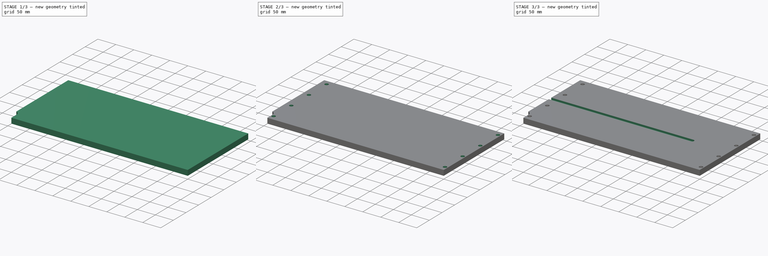
[diagram: build sequence overview — one tinted view per stage of 3, left to right]
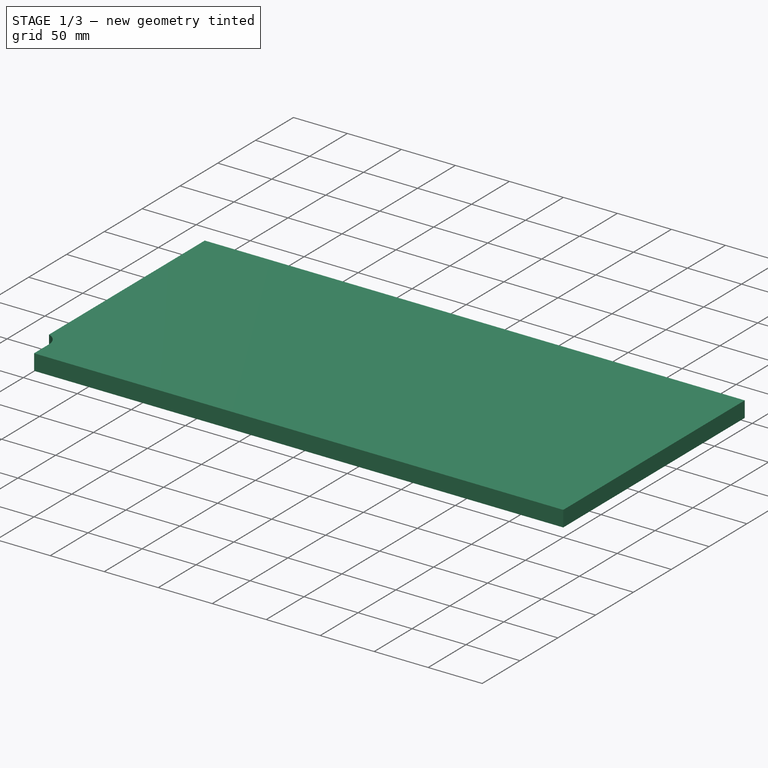
[diagram: stage 1 of 3 — iso view after this stage's code; geometry added in this stage tinted green]
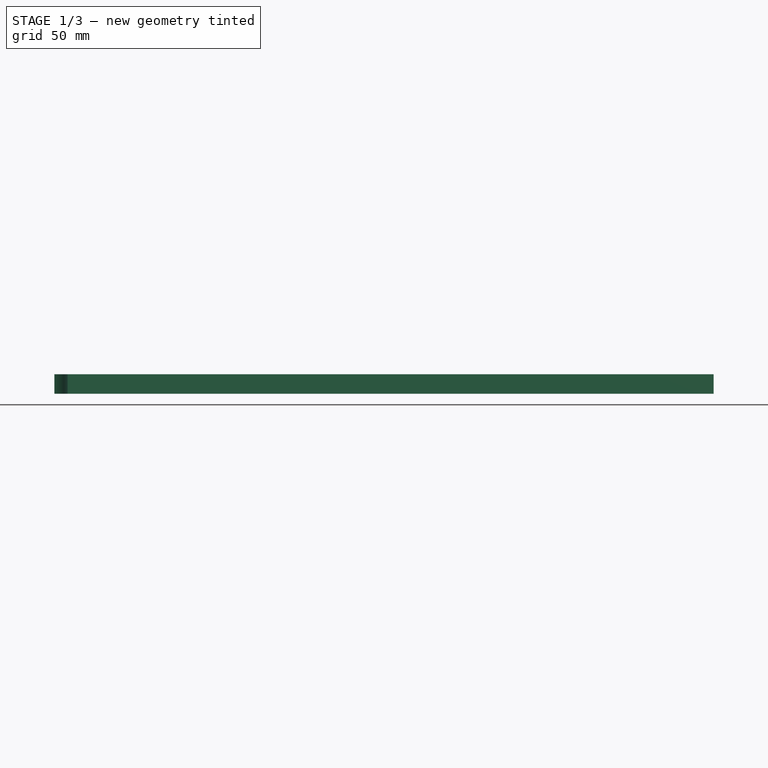
[diagram: stage 1 of 3 — front view after this stage's code; geometry added in this stage tinted green]
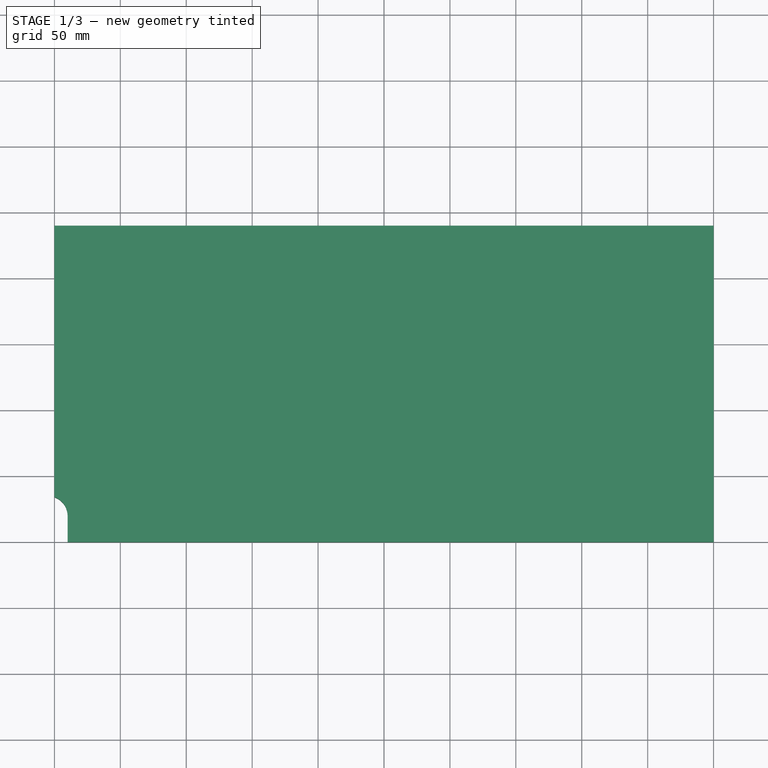
[diagram: stage 1 of 3 — top view after this stage's code; geometry added in this stage tinted green]
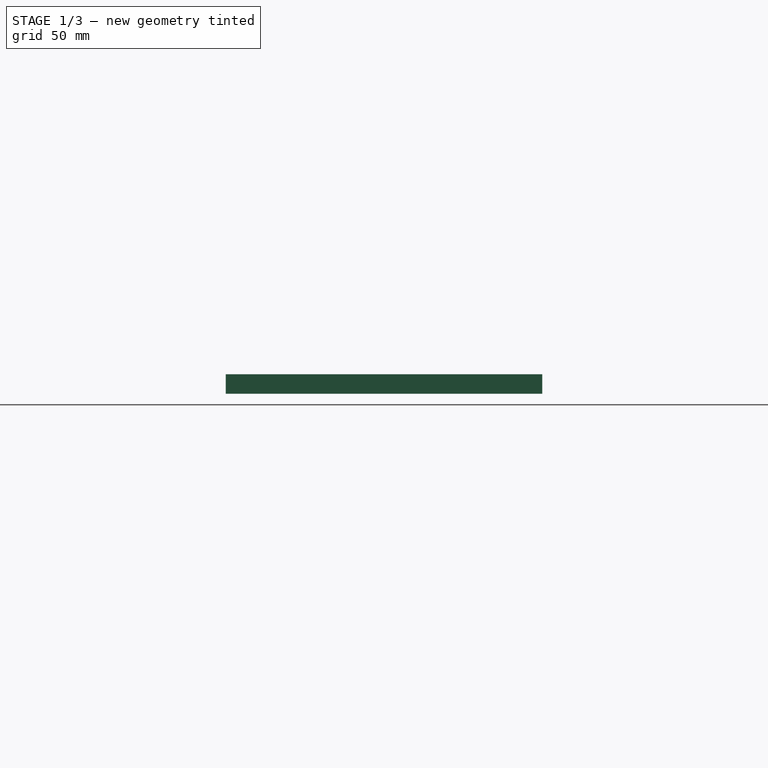
[diagram: stage 1 of 3 — right view after this stage's code; geometry added in this stage tinted green]
FCSTD DOCUMENT
Label: table
objects: Sketcher::SketchObject×4, PartDesign::Pocket×4, Part::Box×1
note: 13 computed .brp shape members not serialized (recipe doc carries the construction recipe); baked Part::Feature solids carry a one-line shape summary decoded from their .brp

FEATURE [Part::Box] Box
  Height = 14.7
  Length = 500
  Width = 240
FEATURE [Sketcher::SketchObject] Sketch  label="C_T_encoche"
  Placement = pos=(0,0,14.7) rot=(0,0,1;0rad)
  Support = -> Box [Face6]
  sketch-geometry (4):
    g0: LineSegment StartX=10.001 StartY=0 StartZ=0 EndX=10.001 EndY=19.857 EndZ=0
    g1: ArcOfCircle CenterX=-4.999 CenterY=19.857 CenterZ=0 NormalX=0 NormalY=0 NormalZ=1 Radius=15 StartAngle=2.73333e-06 EndAngle=1.5708
    g2: LineSegment StartX=10.001 StartY=0 StartZ=0 EndX=-4.999 EndY=0 EndZ=0
    g3: LineSegment StartX=-4.999 StartY=0 StartZ=0 EndX=-4.999 EndY=34.857 EndZ=0
  constraints (13):
    c: PointOnObject(g0,g-1)
    c: Vertical(g0)
    c: Coincident(g2,g0)
    c: Horizontal(g2)
    c: Coincident(g3,g2)
    c: Coincident(g3,g1)
    c: Vertical(g3)
    c: DistanceX(g-1,g1) = -4.999
    c: DistanceY(g-1,g1) = 19.857
    c: Distance(g1,g1) = 15
    c: Coincident(g1,g0)
    c: DistanceY(g0,g0) = 19.857
    c: PointOnObject(g1,g3)
FEATURE [PartDesign::Pocket] Pocket
  Length = 5
  Sketch = -> Sketch
  Type = 1
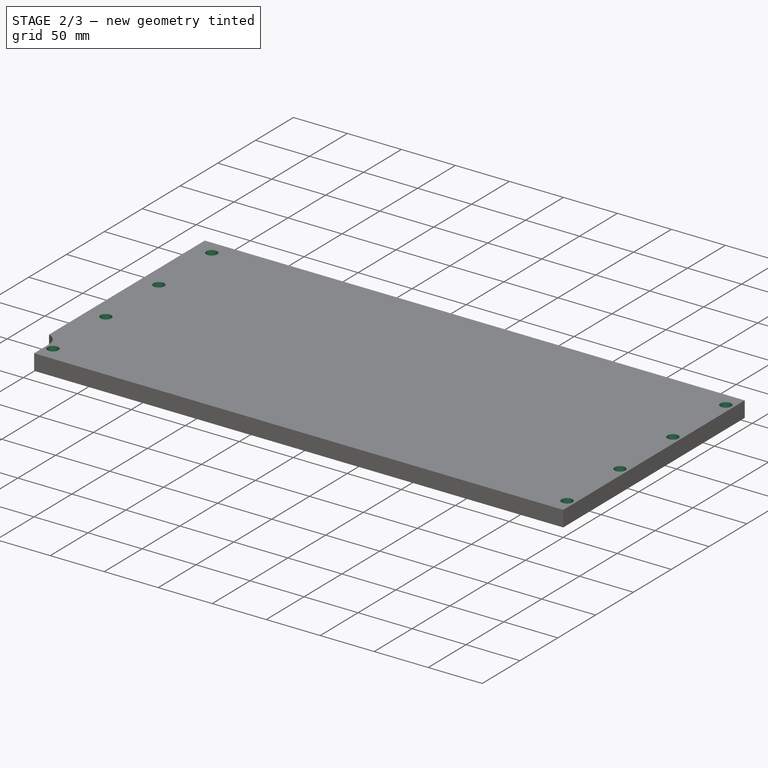
[diagram: stage 2 of 3 — iso view after this stage's code; geometry added in this stage tinted green]
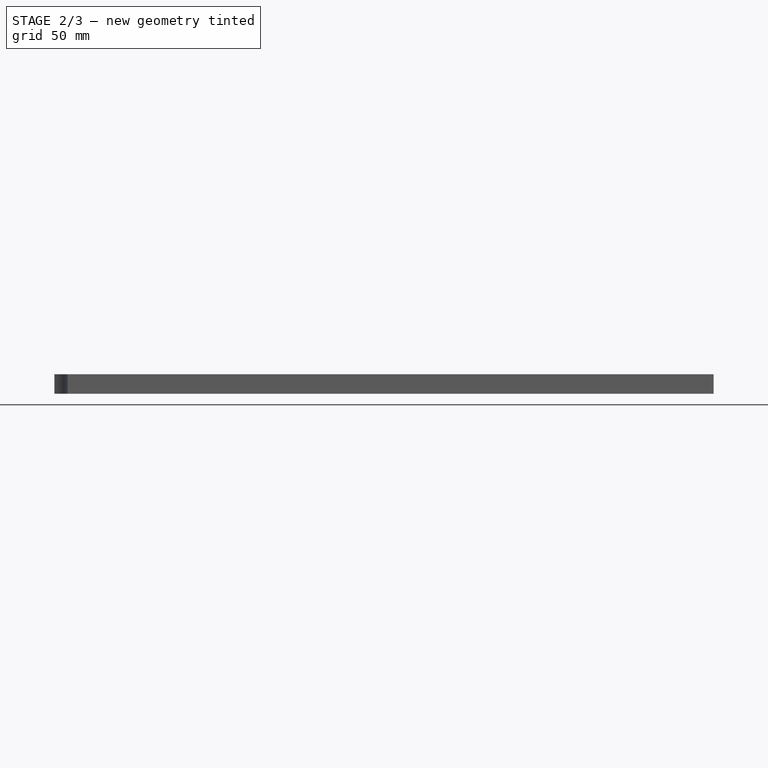
[diagram: stage 2 of 3 — front view after this stage's code; geometry added in this stage tinted green]
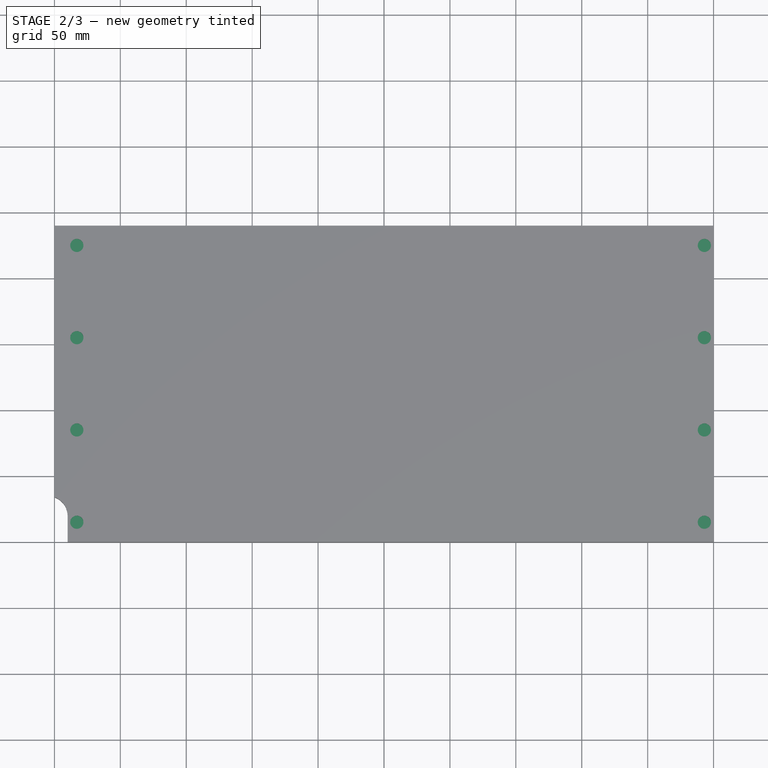
[diagram: stage 2 of 3 — top view after this stage's code; geometry added in this stage tinted green]
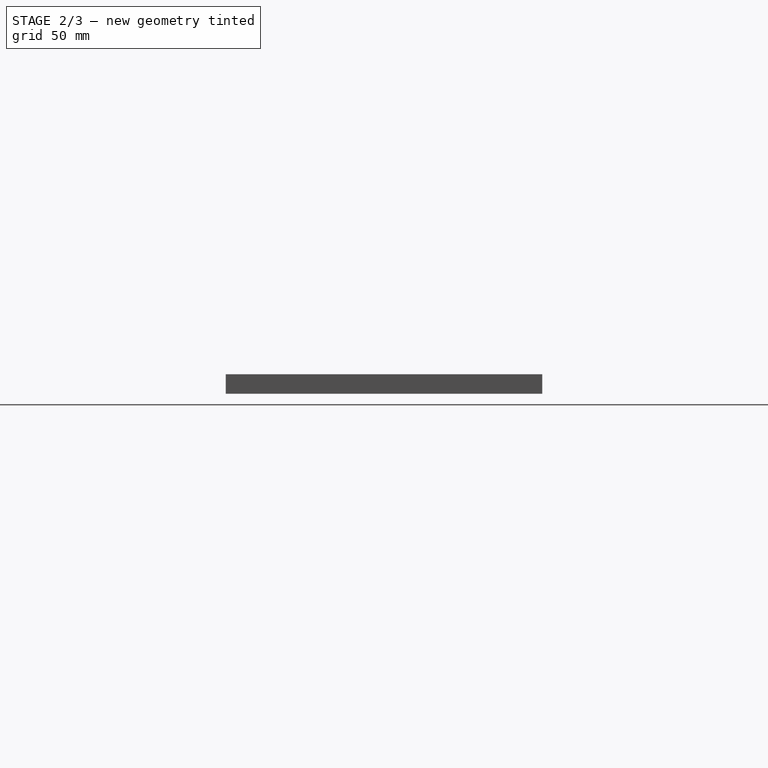
[diagram: stage 2 of 3 — right view after this stage's code; geometry added in this stage tinted green]
FEATURE [Sketcher::SketchObject] Sketch001  label="C_T_tete_vis"
  Placement = pos=(0,0,14.7) rot=(0,0,1;0rad)
  Support = -> Pocket [Face3]
  sketch-geometry (15):
    g0: Circle CenterX=17 CenterY=225 CenterZ=0 NormalX=0 NormalY=0 NormalZ=1 Radius=5
    g1: Circle CenterX=17 CenterY=85 CenterZ=0 NormalX=0 NormalY=0 NormalZ=1 Radius=5
    g2: Circle CenterX=17 CenterY=15 CenterZ=0 NormalX=0 NormalY=0 NormalZ=1 Radius=5
    g3: Circle CenterX=17 CenterY=155 CenterZ=0 NormalX=0 NormalY=0 NormalZ=1 Radius=5
    g4: Circle CenterX=493 CenterY=155 CenterZ=0 NormalX=0 NormalY=0 NormalZ=1 Radius=5
    g5: Circle CenterX=493 CenterY=85 CenterZ=0 NormalX=0 NormalY=0 NormalZ=1 Radius=5
    g6: Circle CenterX=493 CenterY=225 CenterZ=0 NormalX=0 NormalY=0 NormalZ=1 Radius=5
    g7: Circle CenterX=493 CenterY=15 CenterZ=0 NormalX=0 NormalY=0 NormalZ=1 Radius=5
    g8: LineSegment [constr] StartX=0 StartY=0 StartZ=0 EndX=500 EndY=0 EndZ=0
    g9: LineSegment [constr] StartX=500 StartY=0 StartZ=0 EndX=500 EndY=240 EndZ=0
    g10: LineSegment [constr] StartX=17 StartY=15 StartZ=0 EndX=17 EndY=225 EndZ=0
    g11: LineSegment [constr] StartX=17 StartY=15 StartZ=0 EndX=500 EndY=15 EndZ=0
    g12: LineSegment [constr] StartX=17 StartY=85 StartZ=0 EndX=500 EndY=85 EndZ=0
    g13: LineSegment [constr] StartX=17 StartY=155 StartZ=0 EndX=500 EndY=155 EndZ=0
    g14: LineSegment [constr] StartX=17 StartY=225 StartZ=0 EndX=500 EndY=225 EndZ=0
  constraints (48):
    c: Equal(g0,g1)
    c: Equal(g1,g2)
    c: Equal(g2,g3)
    c: Equal(g3,g5)
    c: Equal(g5,g4)
    c: Equal(g4,g6)
    c: Equal(g6,g7)
    c: DistanceX(g5,g4) = 0
    c: DistanceX(g5,g6) = 0
    c: DistanceX(g7,g5) = 0
    c: DistanceY(g4,g6) = 70
    c: DistanceY(g4,g5) = -70
    c: DistanceY(g7,g5) = 70
    c: Radius(g6) = 5
    c: Coincident(g8,g-1)
    c: Horizontal(g8)
    c: DistanceX(g8) = 500
    c: DistanceY(g7,g8) = -15
    c: Coincident(g9,g8)
    c: Vertical(g9)
    c: DistanceY(g9) = 240
    c: DistanceX(g9,g6) = -7
    c: Vertical(g10)
    c: PointOnObject(g3,g10)
    c: PointOnObject(g2,g10)
    c: PointOnObject(g1,g10)
    c: PointOnObject(g0,g10)
    c: Horizontal(g11)
    c: Horizontal(g12)
    c: Horizontal(g13)
    c: Horizontal(g14)
    c: PointOnObject(g0,g14)
    c: PointOnObject(g1,g12)
    c: PointOnObject(g2,g11)
    c: PointOnObject(g3,g13)
    c: PointOnObject(g6,g14)
    c: PointOnObject(g7,g11)
    c: PointOnObject(g5,g12)
    c: PointOnObject(g4,g13)
    c: DistanceX(g-1,g10) = 17
    c: Coincident(g10,g14)
    c: PointOnObject(g13,g10)
    c: PointOnObject(g12,g10)
    c: Coincident(g10,g11)
    c: PointOnObject(g11,g9)
    c: PointOnObject(g12,g9)
    c: PointOnObject(g13,g9)
    c: PointOnObject(g14,g9)
FEATURE [PartDesign::Pocket] Pocket001
  Length = 6
  Sketch = -> Sketch001
  Type = 0
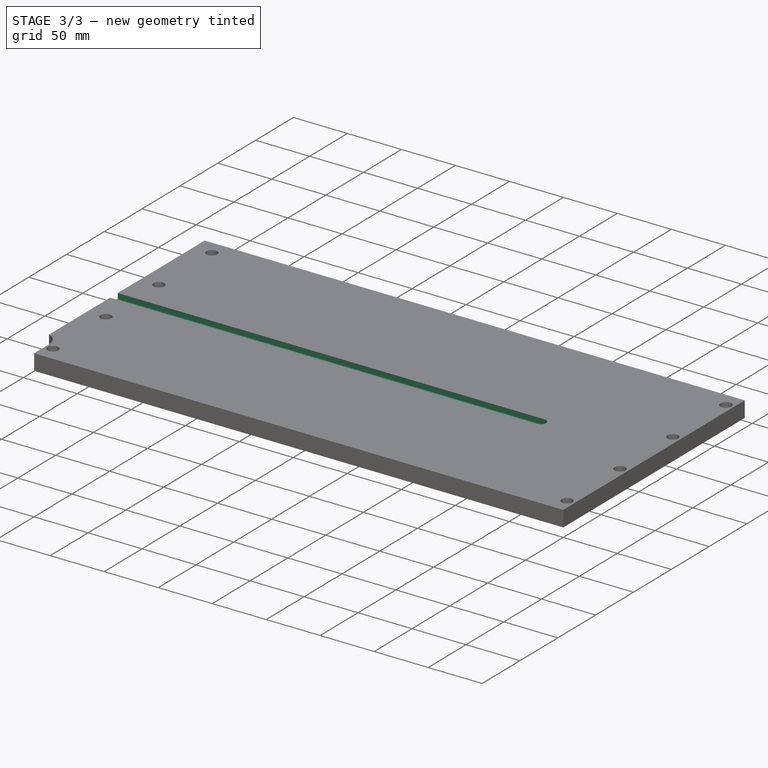
[diagram: stage 3 of 3 — iso view after this stage's code; geometry added in this stage tinted green]
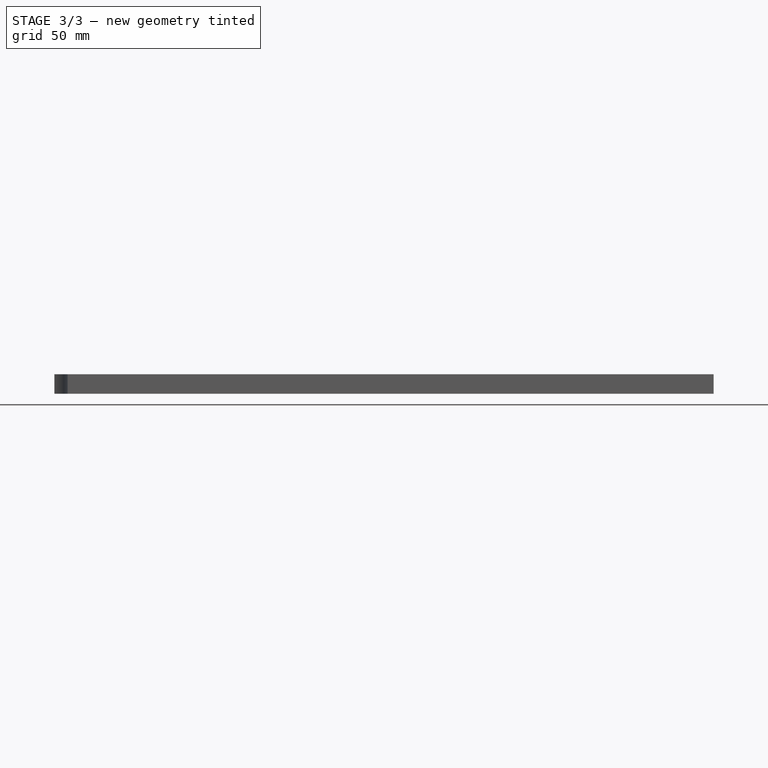
[diagram: stage 3 of 3 — front view after this stage's code; geometry added in this stage tinted green]
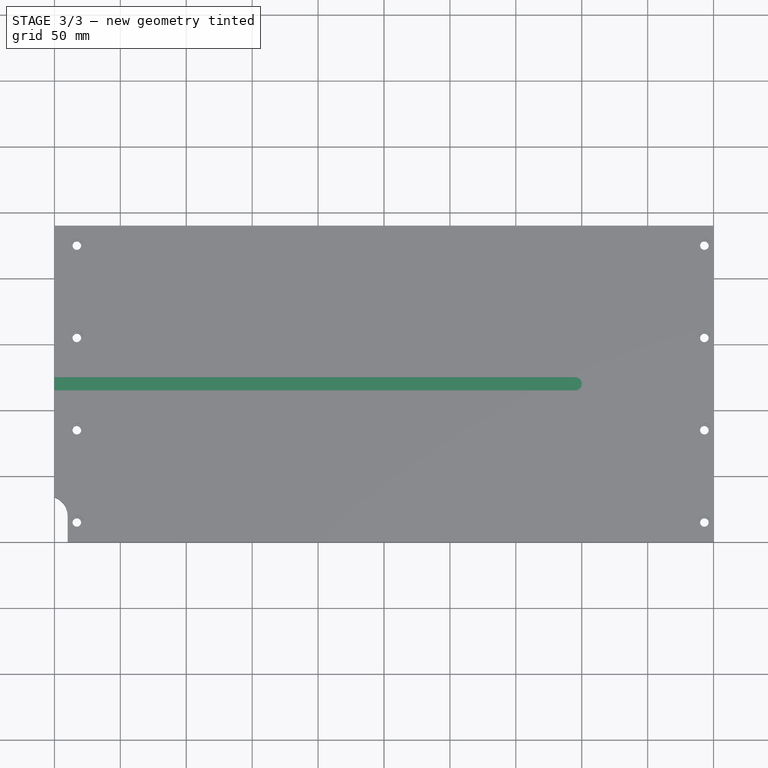
[diagram: stage 3 of 3 — top view after this stage's code; geometry added in this stage tinted green]
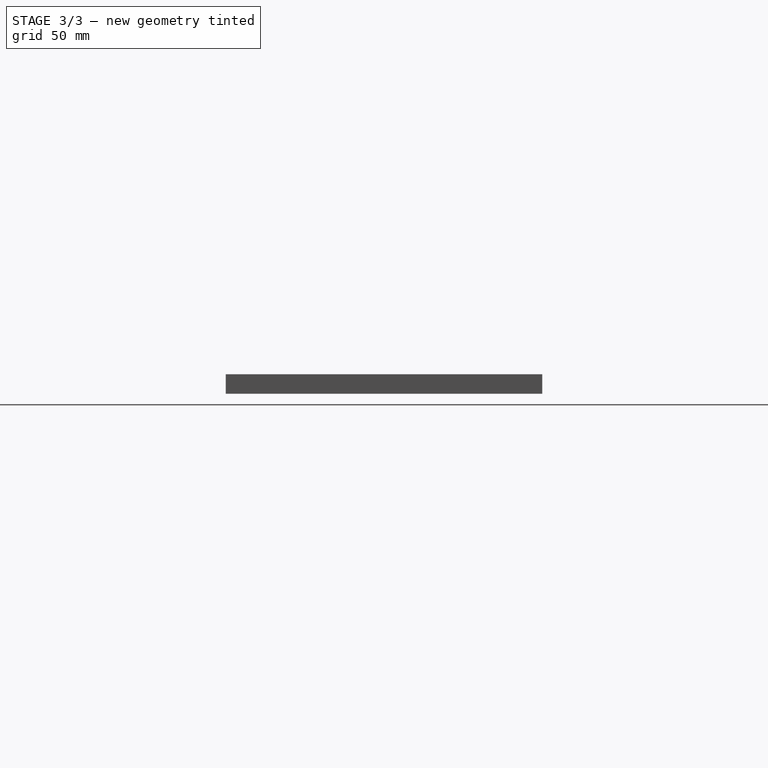
[diagram: stage 3 of 3 — right view after this stage's code; geometry added in this stage tinted green]
FEATURE [Sketcher::SketchObject] Sketch001001  label="C_T_vis"
  Placement = pos=(0,0,14.7) rot=(0,0,1;0rad)
  Support = -> Pocket001 [Face3]
  sketch-geometry (15):
    g0: Circle CenterX=17 CenterY=225 CenterZ=0 NormalX=0 NormalY=0 NormalZ=1 Radius=3.25
    g1: Circle CenterX=17 CenterY=85 CenterZ=0 NormalX=0 NormalY=0 NormalZ=1 Radius=3.25
    g2: Circle CenterX=17 CenterY=15 CenterZ=0 NormalX=0 NormalY=0 NormalZ=1 Radius=3.25
    g3: Circle CenterX=17 CenterY=155 CenterZ=0 NormalX=0 NormalY=0 NormalZ=1 Radius=3.25
    g4: Circle CenterX=493 CenterY=155 CenterZ=0 NormalX=0 NormalY=0 NormalZ=1 Radius=3.25
    g5: Circle CenterX=493 CenterY=85 CenterZ=0 NormalX=0 NormalY=0 NormalZ=1 Radius=3.25
    g6: Circle CenterX=493 CenterY=225 CenterZ=0 NormalX=0 NormalY=0 NormalZ=1 Radius=3.25
    g7: Circle CenterX=493 CenterY=15 CenterZ=0 NormalX=0 NormalY=0 NormalZ=1 Radius=3.25
    g8: LineSegment [constr] StartX=0 StartY=0 StartZ=0 EndX=500 EndY=0 EndZ=0
    g9: LineSegment [constr] StartX=500 StartY=0 StartZ=0 EndX=500 EndY=240 EndZ=0
    g10: LineSegment [constr] StartX=17 StartY=15 StartZ=0 EndX=17 EndY=225 EndZ=0
    g11: LineSegment [constr] StartX=17 StartY=15 StartZ=0 EndX=500 EndY=15 EndZ=0
    g12: LineSegment [constr] StartX=17 StartY=85 StartZ=0 EndX=500 EndY=85 EndZ=0
    g13: LineSegment [constr] StartX=17 StartY=155 StartZ=0 EndX=500 EndY=155 EndZ=0
    g14: LineSegment [constr] StartX=17 StartY=225 StartZ=0 EndX=500 EndY=225 EndZ=0
  constraints (48):
    c: Equal(g0,g1)
    c: Equal(g1,g2)
    c: Equal(g2,g3)
    c: Equal(g3,g5)
    c: Equal(g5,g4)
    c: Equal(g4,g6)
    c: Equal(g6,g7)
    c: DistanceX(g5,g4) = 0
    c: DistanceX(g5,g6) = 0
    c: DistanceX(g7,g5) = 0
    c: DistanceY(g4,g6) = 70
    c: DistanceY(g4,g5) = -70
    c: DistanceY(g7,g5) = 70
    c: Radius(g6) = 3.25
    c: Coincident(g8,g-1)
    c: Horizontal(g8)
    c: DistanceX(g8) = 500
    c: DistanceY(g7,g8) = -15
    c: Coincident(g9,g8)
    c: Vertical(g9)
    c: DistanceY(g9) = 240
    c: DistanceX(g9,g6) = -7
    c: Vertical(g10)
    c: PointOnObject(g3,g10)
    c: PointOnObject(g2,g10)
    c: PointOnObject(g1,g10)
    c: PointOnObject(g0,g10)
    c: Horizontal(g11)
    c: Horizontal(g12)
    c: Horizontal(g13)
    c: Horizontal(g14)
    c: PointOnObject(g0,g14)
    c: PointOnObject(g1,g12)
    c: PointOnObject(g2,g11)
    c: PointOnObject(g3,g13)
    c: PointOnObject(g6,g14)
    c: PointOnObject(g7,g11)
    c: PointOnObject(g5,g12)
    c: PointOnObject(g4,g13)
    c: DistanceX(g-1,g10) = 17
    c: Coincident(g10,g14)
    c: PointOnObject(g13,g10)
    c: PointOnObject(g12,g10)
    c: Coincident(g10,g11)
    c: PointOnObject(g11,g9)
    c: PointOnObject(g12,g9)
    c: PointOnObject(g13,g9)
    c: PointOnObject(g14,g9)
FEATURE [PartDesign::Pocket] Pocket002
  Length = 5
  Sketch = -> Sketch001001
  Type = 1
FEATURE [Sketcher::SketchObject] Sketch001002  label="C_T_rainure"
  Placement = pos=(0,0,14.7) rot=(0,0,1;0rad)
  Support = -> Pocket002 [Face3]
  sketch-geometry (9):
    g0: LineSegment [constr] StartX=0 StartY=120 StartZ=0 EndX=500 EndY=120 EndZ=0
    g1: LineSegment [constr] StartX=0 StartY=0 StartZ=0 EndX=500 EndY=0 EndZ=0
    g2: LineSegment [constr] StartX=500 StartY=0 StartZ=0 EndX=500 EndY=240 EndZ=0
    g3: LineSegment [constr] StartX=500 StartY=240 StartZ=0 EndX=0 EndY=240 EndZ=0
    g4: LineSegment [constr] StartX=0 StartY=240 StartZ=0 EndX=0 EndY=0 EndZ=0
    g5: LineSegment StartX=395 StartY=125 StartZ=0 EndX=0 EndY=125 EndZ=0
    g6: LineSegment StartX=0 StartY=125 StartZ=0 EndX=0 EndY=115 EndZ=0
    g7: LineSegment StartX=0 StartY=115 StartZ=0 EndX=395 EndY=115 EndZ=0
    g8: ArcOfCircle CenterX=395 CenterY=120 CenterZ=0 NormalX=0 NormalY=0 NormalZ=1 Radius=5 StartAngle=4.71239 EndAngle=7.85399
  constraints (28):
    c: Horizontal(g0)
    c: DistanceX(g-1,g0) = 0
    c: DistanceY(g-1,g0) = 120
    c: Coincident(g1,g2)
    c: Coincident(g2,g3)
    c: Coincident(g3,g4)
    c: Coincident(g4,g1)
    c: Horizontal(g1)
    c: Horizontal(g3)
    c: Vertical(g2)
    c: Vertical(g4)
    c: Coincident(g1,g-1)
    c: DistanceX(g3,g2) = 500
    c: DistanceY(g1,g2) = 240
    c: PointOnObject(g5,g4)
    c: Horizontal(g5)
    c: Coincident(g5,g6)
    c: PointOnObject(g6,g4)
    c: Coincident(g6,g7)
    c: Horizontal(g7)
    c: PointOnObject(g0,g2)
    c: DistanceY(g5,g6) = -10
    c: Symmetric(g5,g7,g0)
    c: PointOnObject(g8,g0)
    c: DistanceX(g5,g5) = 395
    c: Radius(g8) = 5
    c: Coincident(g8,g7)
    c: Coincident(g8,g5)
FEATURE [PartDesign::Pocket] Pocket003001
  Length = 5
  Sketch = -> Sketch001002
  Type = 0
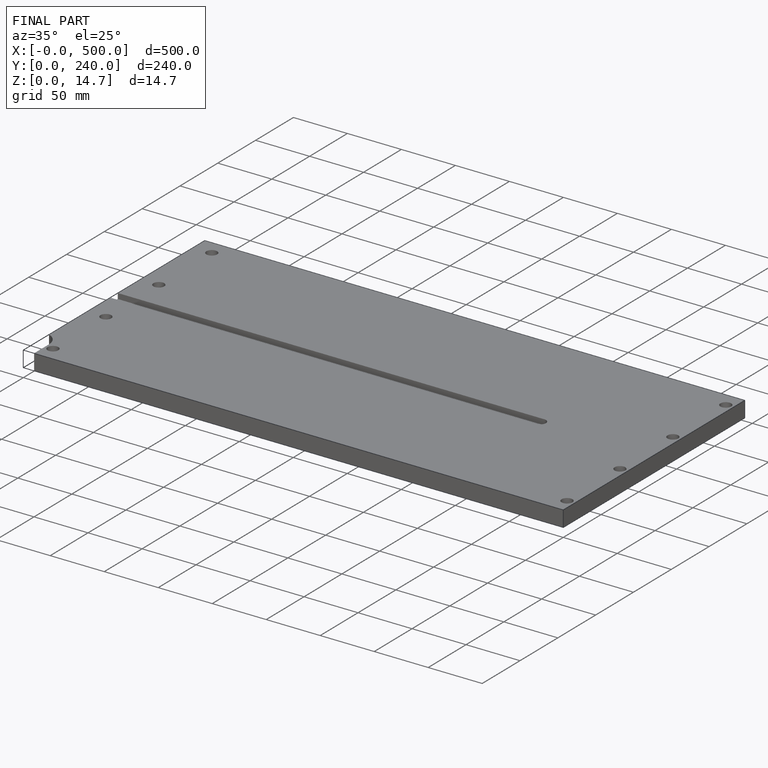
[diagram: finished part — iso view with bounding-box wireframe]
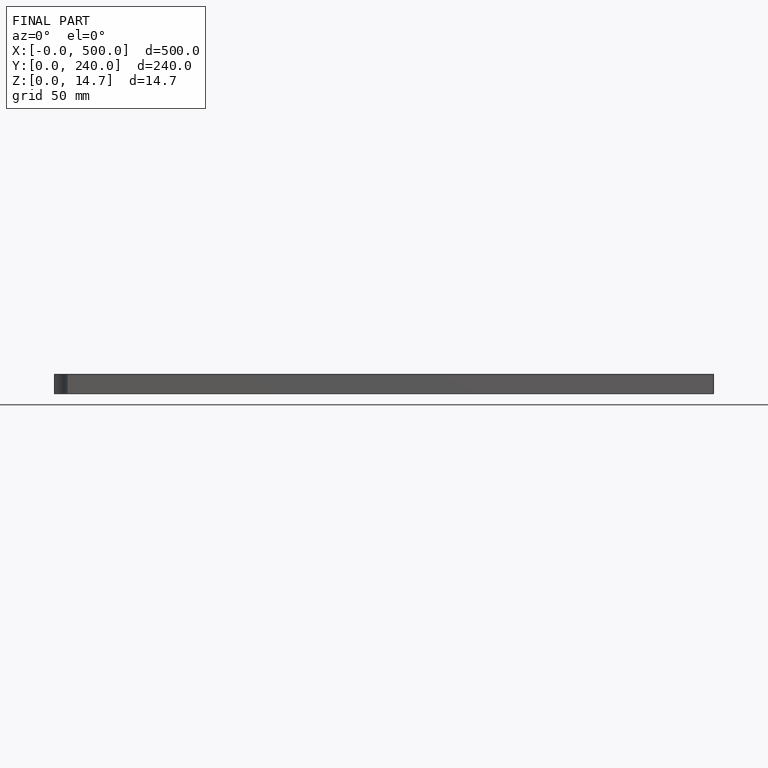
[diagram: finished part — front view with bounding-box wireframe]
